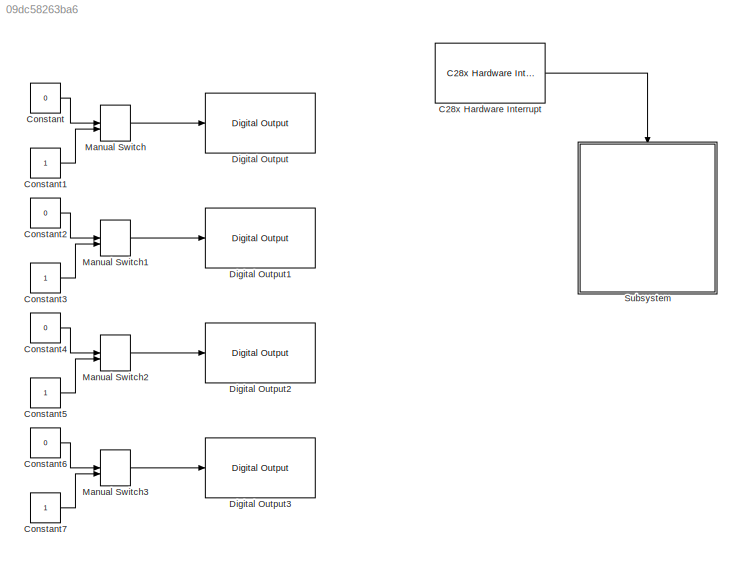
MODEL slx_09dc58263ba6
KIND model
CONFIG AbsTol = auto
CONFIG EnableMultiTasking = on
CONFIG FixedStep = auto
CONFIG MaxStep = auto
CONFIG MinStep = auto
CONFIG RelTol = 1e-3
CONFIG SampleTimeConstraint = Unconstrained
CONFIG SolverName = FixedStepDiscrete
CONFIG StartTime = 0.0
CONFIG StopTime = Inf
BLOCK [Reference] C28x Hardware Interrupt  REF=c2000lib/Scheduling/C28x Hardware Interrupt
  Ports = [0, 1]
  SourceBlock = c2000lib/Scheduling/C28x Hardware Interrupt
  SourceProductBaseCode = TIC2000
  SourceType = C28x Interrupt Block
BLOCK [Constant] Constant
  Commented = on
  Value = 0
BLOCK [Constant] Constant1
  Commented = on
BLOCK [Constant] Constant2
  Commented = on
  Value = 0
BLOCK [Constant] Constant3
  Commented = on
BLOCK [Constant] Constant4
  Commented = on
  Value = 0
BLOCK [Constant] Constant5
  Commented = on
BLOCK [Constant] Constant6
  Commented = on
  Value = 0
BLOCK [Constant] Constant7
  Commented = on
BLOCK [Reference] Digital Output  REF=c2802xlib/Digital Output
  Commented = on
  Ports = [1]
  SourceBlock = c2802xlib/Digital Output
  SourceProductBaseCode = TIC2000
  SourceType = C2802x GPIO Digital Output
  UserDataPersistent = on
BLOCK [Reference] Digital Output1  REF=c2802xlib/Digital Output
  Commented = on
  Ports = [1]
  SourceBlock = c2802xlib/Digital Output
  SourceProductBaseCode = TIC2000
  SourceType = C2802x GPIO Digital Output
  UserDataPersistent = on
BLOCK [Reference] Digital Output2  REF=c2802xlib/Digital Output
  Commented = on
  Ports = [1]
  SourceBlock = c2802xlib/Digital Output
  SourceProductBaseCode = TIC2000
  SourceType = C2802x GPIO Digital Output
  UserDataPersistent = on
BLOCK [Reference] Digital Output3  REF=c2802xlib/Digital Output
  Commented = on
  Ports = [1]
  SourceBlock = c2802xlib/Digital Output
  SourceProductBaseCode = TIC2000
  SourceType = C2802x GPIO Digital Output
  UserDataPersistent = on
BLOCK [ManualSwitch] Manual Switch
  Commented = on
BLOCK [ManualSwitch] Manual Switch1
  Commented = on
BLOCK [ManualSwitch] Manual Switch2
  Commented = on
BLOCK [ManualSwitch] Manual Switch3
  Commented = on
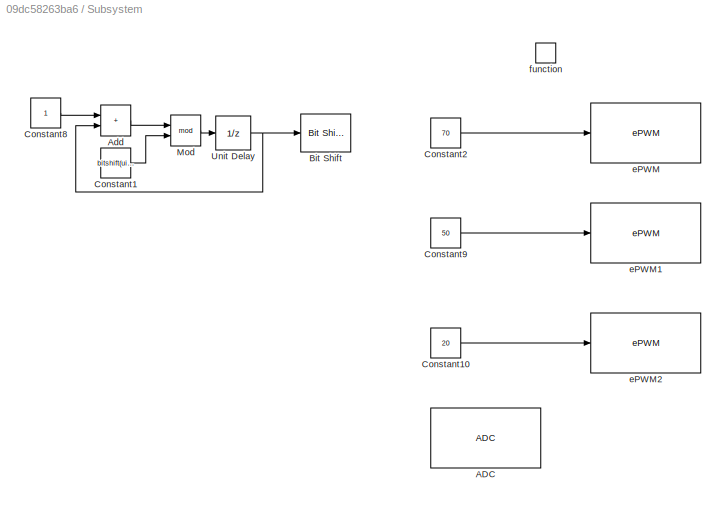
BLOCK [SubSystem] Subsystem
  Ports = [0, 0, 0, 1]
  RequestExecContextInheritance = off
BLOCK [Reference] Subsystem/ADC  REF=c2802xlib/ADC
  Ports = [0, 1]
  SourceBlock = c2802xlib/ADC
  SourceProductBaseCode = TIC2000
  SourceType = C2802x/03x/05x/06x/M3x/37x/07x/004x/38x ADC
  UserDataPersistent = on
BLOCK [Sum] Subsystem/Add
  Commented = on
  IconShape = rectangular
  Ports = [2, 1]
BLOCK [Reference] Subsystem/Bit Shift  REF=hdlsllib/Logic and Bit
Operations/Bit Shift
  Commented = on
  Ports = [1, 1]
  SourceBlock = hdlsllib/Logic and Bit\nOperations/Bit Shift
  SourceProductBaseCode = SL
  SourceType = Bit Shift
BLOCK [Constant] Subsystem/Constant1
  Commented = on
  OutDataTypeStr = single
  Value = bitshift(uint32(100),4)
BLOCK [Constant] Subsystem/Constant10
  OutDataTypeStr = uint32
  Value = 20
BLOCK [Constant] Subsystem/Constant2
  OutDataTypeStr = uint32
  Value = 70
BLOCK [Constant] Subsystem/Constant8
  Commented = on
  OutDataTypeStr = uint32
BLOCK [Constant] Subsystem/Constant9
  OutDataTypeStr = uint32
  Value = 50
BLOCK [Math] Subsystem/Mod
  Commented = on
  Operator = mod
  Ports = [2, 1]
BLOCK [UnitDelay] Subsystem/Unit Delay
  Commented = on
  HasFrameUpgradeWarning = on
  InitialCondition = bitshift(uint32(50),4)
  SampleTime = -1
BLOCK [Reference] Subsystem/ePWM  REF=c2802xlib/ePWM
  Ports = [1]
  SourceBlock = c2802xlib/ePWM
  SourceProductBaseCode = TIC2000
  SourceType = C2802x/03x/05x/06x/M3x/37x/07x/004x/38x ePWM
  UserDataPersistent = on
BLOCK [Reference] Subsystem/ePWM1  REF=c2802xlib/ePWM
  Ports = [1]
  SourceBlock = c2802xlib/ePWM
  SourceProductBaseCode = TIC2000
  SourceType = C2802x/03x/05x/06x/M3x/37x/07x/004x/38x ePWM
  UserDataPersistent = on
BLOCK [Reference] Subsystem/ePWM2  REF=c2802xlib/ePWM
  Ports = [1]
  SourceBlock = c2802xlib/ePWM
  SourceProductBaseCode = TIC2000
  SourceType = C2802x/03x/05x/06x/M3x/37x/07x/004x/38x ePWM
  UserDataPersistent = on
BLOCK [TriggerPort] Subsystem/function
  Ports = []
  StatesWhenEnabling = held
  TriggerType = function-call
  VariantControl = Variant
LINE C28x Hardware Interrupt:1 -> Subsystem:trigger
LINE Constant1:1 -> Manual Switch:2
LINE Constant2:1 -> Manual Switch1:1
LINE Constant3:1 -> Manual Switch1:2
LINE Constant4:1 -> Manual Switch2:1
LINE Constant5:1 -> Manual Switch2:2
LINE Constant6:1 -> Manual Switch3:1
LINE Constant7:1 -> Manual Switch3:2
LINE Constant:1 -> Manual Switch:1
LINE Manual Switch1:1 -> Digital Output1:1
LINE Manual Switch2:1 -> Digital Output2:1
LINE Manual Switch3:1 -> Digital Output3:1
LINE Manual Switch:1 -> Digital Output:1
LINE Subsystem/Add:1 -> Subsystem/Mod:1
LINE Subsystem/Constant10:1 -> Subsystem/ePWM2:1
LINE Subsystem/Constant1:1 -> Subsystem/Mod:2
LINE Subsystem/Constant2:1 -> Subsystem/ePWM:1
LINE Subsystem/Constant8:1 -> Subsystem/Add:1
LINE Subsystem/Constant9:1 -> Subsystem/ePWM1:1
LINE Subsystem/Mod:1 -> Subsystem/Unit Delay:1
NET Subsystem/Unit Delay:1 -> Subsystem/Add:2, Subsystem/Bit Shift:1
note: NET lines group one-source signal fan-out (src -> all destinations, sorted); 1:1 wires keep LINE
